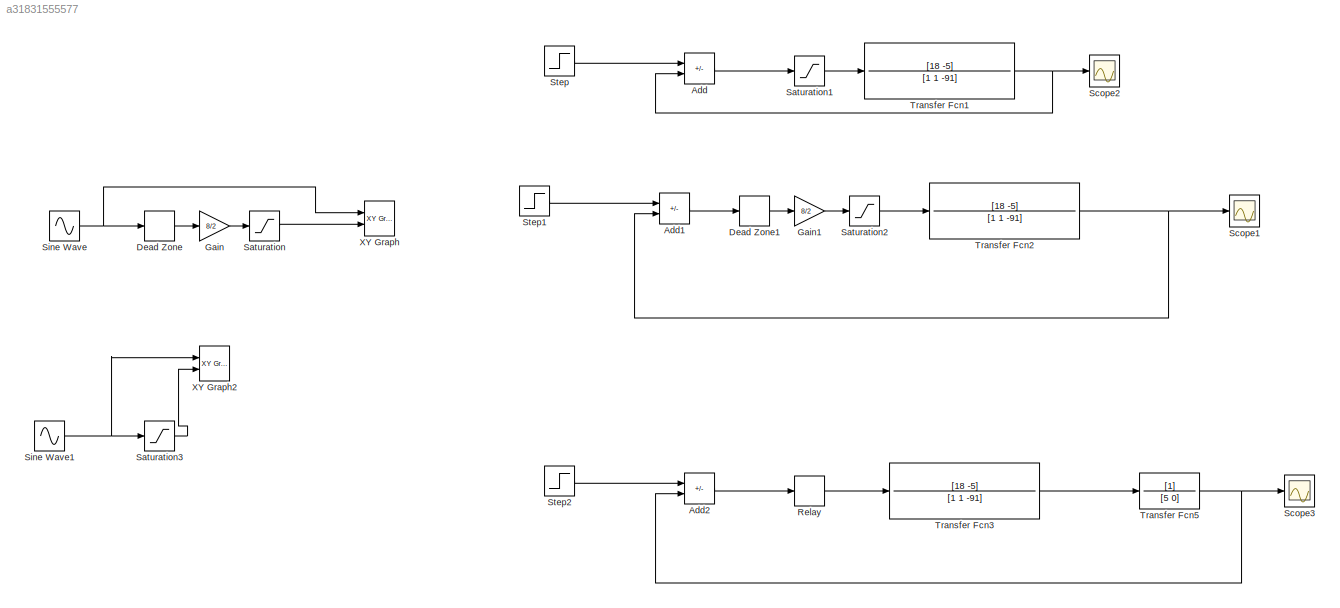
MODEL slx_a31831555577
KIND model
CONFIG AbsTol = auto
CONFIG EnableMultiTasking = off
CONFIG FixedStep = 0.01
CONFIG MaxStep = auto
CONFIG MinStep = auto
CONFIG RelTol = 1e-3
CONFIG SampleTimeConstraint = Unconstrained
CONFIG SolverName = FixedStepAuto
CONFIG StartTime = 0.0
CONFIG StopTime = 10
BLOCK [Sum] Add
  IconShape = rectangular
  Inputs = +-
  Ports = [2, 1]
BLOCK [Sum] Add1
  IconShape = rectangular
  Inputs = +-
  Ports = [2, 1]
BLOCK [Sum] Add2
  IconShape = rectangular
  Inputs = +-
  Ports = [2, 1]
BLOCK [DeadZone] Dead Zone
  Commented = on
  LowerValue = -2
  UpperValue = 2
BLOCK [DeadZone] Dead Zone1
  LowerValue = -2
  UpperValue = 2
BLOCK [Gain] Gain
  Commented = on
  Gain = 8/2
BLOCK [Gain] Gain1
  Gain = 8/2
BLOCK [Relay] Relay
  OffSwitchValue = -3
  OnSwitchValue = 3
BLOCK [Saturate] Saturation
  Commented = on
  LowerLimit = -8
  UpperLimit = 8
BLOCK [Saturate] Saturation1
  LowerLimit = -5
  UpperLimit = 5
BLOCK [Saturate] Saturation2
  LowerLimit = -8
  UpperLimit = 8
BLOCK [Saturate] Saturation3
  Commented = on
  LowerLimit = -5
  UpperLimit = 5
BLOCK [Scope] Scope1
  Floating = off
  NumInputPorts = 1
  Ports = [1]
  ScopeSpecificationString = Simulink.scopes.TimeScopeBlockCfg('CurrentConfiguration', extmgr.ConfigurationSet(extmgr.Configuration('Core','General UI',true,'FigureColor',[1 1 1]),extmgr.Configuration('Core','Source UI',true),extmgr.Configuration('Sources','WiredSimulink',true,'DataLoggingVariableName','ScopeData1'),extmgr.Configuration('Visuals','Time Domain',true,'SerializedDisplays',{struct('MinYLimReal','-3666343004663602...<+1855ch>
BLOCK [Scope] Scope2
  Floating = off
  NumInputPorts = 1
  Ports = [1]
  ScopeSpecificationString = Simulink.scopes.TimeScopeBlockCfg('CurrentConfiguration', extmgr.ConfigurationSet(extmgr.Configuration('Core','General UI',true,'FigureColor',[1 1 1]),extmgr.Configuration('Core','Source UI',true),extmgr.Configuration('Sources','WiredSimulink',true,'DataLoggingVariableName','ScopeData2'),extmgr.Configuration('Visuals','Time Domain',true,'SerializedDisplays',{struct('MinYLimReal','-8350883410714695...<+1839ch>
BLOCK [Scope] Scope3
  Floating = off
  NumInputPorts = 1
  Ports = [1]
  ScopeSpecificationString = Simulink.scopes.TimeScopeBlockCfg('CurrentConfiguration', extmgr.ConfigurationSet(extmgr.Configuration('Core','General UI',true,'FigureColor',[1 1 1]),extmgr.Configuration('Core','Source UI',true),extmgr.Configuration('Sources','WiredSimulink',true,'DataLoggingVariableName','ScopeData2'),extmgr.Configuration('Visuals','Time Domain',true,'SerializedDisplays',{struct('MinYLimReal','-5171671956030412...<+1872ch>
BLOCK [Sin] Sine Wave
  Amplitude = 10
  Commented = on
  Ports = [0, 1]
  SampleTime = 0
BLOCK [Sin] Sine Wave1
  Amplitude = 10
  Commented = on
  Ports = [0, 1]
  SampleTime = 0
BLOCK [Step] Step
  SampleTime = 0
  Time = 0
BLOCK [Step] Step1
  After = 11
  SampleTime = 0
  Time = 0
BLOCK [Step] Step2
  After = 3
  SampleTime = 0
  Time = 0
BLOCK [TransferFcn] Transfer Fcn1
  Denominator = [1 1 -91]
  Numerator = [18 -5]
BLOCK [TransferFcn] Transfer Fcn2
  Denominator = [1 1 -91]
  Numerator = [18 -5]
BLOCK [TransferFcn] Transfer Fcn3
  Denominator = [1 1 -91]
  Numerator = [18 -5]
BLOCK [TransferFcn] Transfer Fcn5
  Denominator = [5 0]
BLOCK [Reference] XY Graph  REF=simulink/Sinks/XY Graph
  Commented = on
  Ports = [2]
  SourceBlock = simulink/Sinks/XY Graph
  SourceProductBaseCode = SL
  SourceType = XY scope.
BLOCK [Reference] XY Graph2  REF=simulink/Sinks/XY Graph
  Commented = on
  Ports = [2]
  SourceBlock = simulink/Sinks/XY Graph
  SourceProductBaseCode = SL
  SourceType = XY scope.
LINE Add1:1 -> Dead Zone1:1
LINE Add2:1 -> Relay:1
LINE Add:1 -> Saturation1:1
LINE Dead Zone1:1 -> Gain1:1
LINE Dead Zone:1 -> Gain:1
LINE Gain1:1 -> Saturation2:1
LINE Gain:1 -> Saturation:1
LINE Relay:1 -> Transfer Fcn3:1
LINE Saturation1:1 -> Transfer Fcn1:1
LINE Saturation2:1 -> Transfer Fcn2:1
LINE Saturation3:1 -> XY Graph2:2
LINE Saturation:1 -> XY Graph:2
NET Sine Wave1:1 -> Saturation3:1, XY Graph2:1
NET Sine Wave:1 -> Dead Zone:1, XY Graph:1
LINE Step1:1 -> Add1:1
LINE Step2:1 -> Add2:1
LINE Step:1 -> Add:1
NET Transfer Fcn1:1 -> Add:2, Scope2:1
NET Transfer Fcn2:1 -> Add1:2, Scope1:1
LINE Transfer Fcn3:1 -> Transfer Fcn5:1
NET Transfer Fcn5:1 -> Add2:2, Scope3:1
note: NET lines group one-source signal fan-out (src -> all destinations, sorted); 1:1 wires keep LINE
